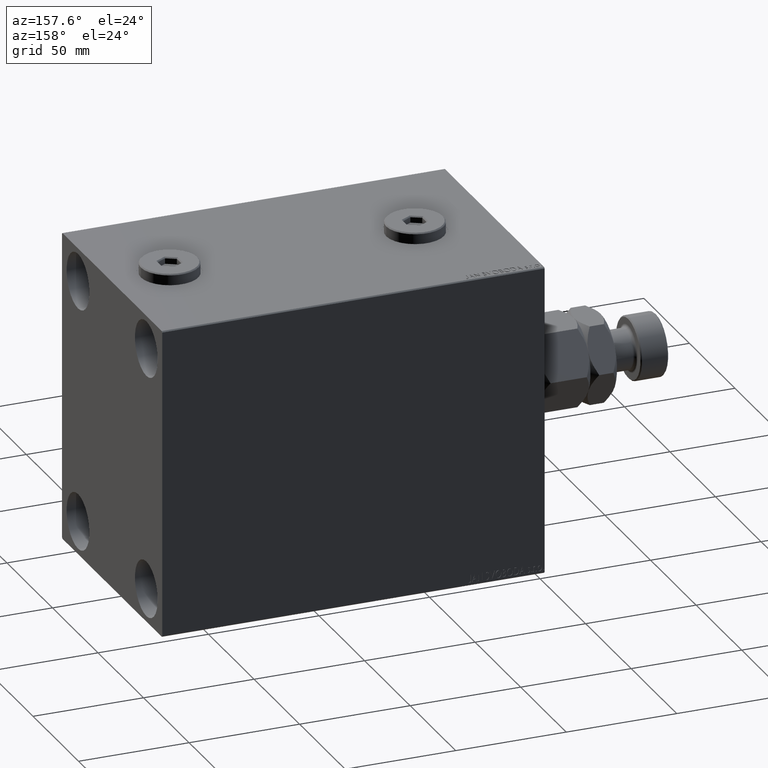
[diagram: clean part render]
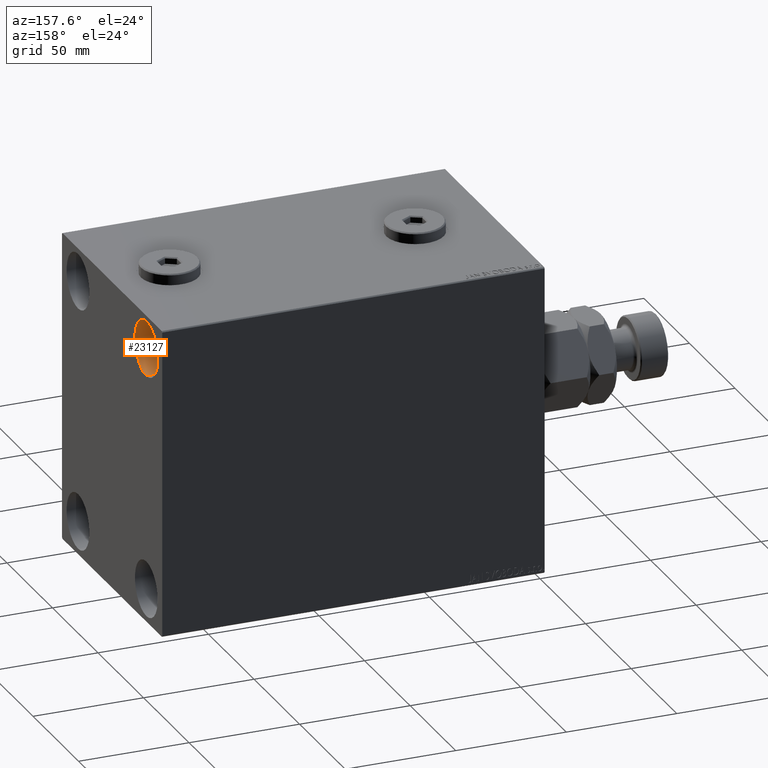
[diagram: same view with one face highlighted and labeled with its STEP entity id]
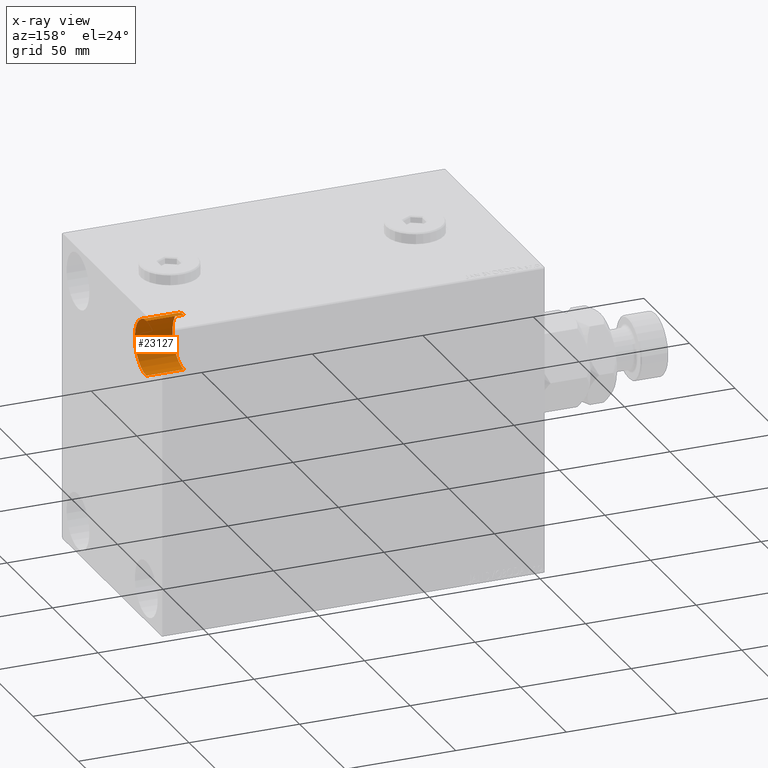
[diagram: x-ray of the same camera — body ghosted, the highlighted face saturated]
A machine part, auxiliary view. The second image highlights one B-rep face of the part: STEP entity #23127.
The next image is the same camera in x-ray: the body ghosted, the highlighted face saturated — about 0% of this face is hidden behind the body in this view.
In plain terms, the highlighted cylindrical surface (edge-blend (fillet) strip) has radius 12.5 mm, axis along (1, 0, 0).
Its self-contained STEP definition (entity closure, byte-faithful):
#829 = CARTESIAN_POINT ( 'NONE',  ( 173.0000000000000000, 37.50000000000000711, 55.00000000000000711 ) ) ;
#1446 = LINE ( 'NONE', #27607, #18927 ) ;
#2832 = CARTESIAN_POINT ( 'NONE',  ( 155.9999999999999716, 37.50000000000000711, 55.00000000000000711 ) ) ;
#3826 = ORIENTED_EDGE ( 'NONE', *, *, #20458, .T. ) ;
#5581 = AXIS2_PLACEMENT_3D ( 'NONE', #829, #7961, #16048 ) ;
#7961 = DIRECTION ( 'NONE',  ( -1.000000000000000000, -0.000000000000000000, -0.000000000000000000 ) ) ;
#8568 = ORIENTED_EDGE ( 'NONE', *, *, #43903, .F. ) ;
#8855 = DIRECTION ( 'NONE',  ( 1.000000000000000000, -0.000000000000000000, -0.000000000000000000 ) ) ;
#9176 = CARTESIAN_POINT ( 'NONE',  ( 173.0000000000000000, 37.50000000000000711, 42.50000000000000711 ) ) ;
#13529 = CARTESIAN_POINT ( 'NONE',  ( 173.0000000000000000, 37.50000000000000711, 67.50000000000000000 ) ) ;
#13726 = AXIS2_PLACEMENT_3D ( 'NONE', #2832, #31629, #14021 ) ;
#14021 = DIRECTION ( 'NONE',  ( 0.000000000000000000, 0.000000000000000000, 1.000000000000000000 ) ) ;
#15978 = AXIS2_PLACEMENT_3D ( 'NONE', #34703, #30905, #34007 ) ;
#16048 = DIRECTION ( 'NONE',  ( 0.000000000000000000, 0.000000000000000000, 1.000000000000000000 ) ) ;
#17766 = CIRCLE ( 'NONE', #5581, 12.49999999999999645 ) ;
#18927 = VECTOR ( 'NONE', #45442, 1000.000000000000000 ) ;
#19583 = VERTEX_POINT ( 'NONE', #25492 ) ;
#20025 = VERTEX_POINT ( 'NONE', #9176 ) ;
#20458 = EDGE_CURVE ( 'NONE', #25720, #32680, #1446, .T. ) ;
#20516 = LINE ( 'NONE', #26911, #26894 ) ;
#23127 = ADVANCED_FACE ( 'NONE', ( #38507 ), #31146, .F. ) ;
#23247 = EDGE_CURVE ( 'NONE', #19583, #25720, #34204, .T. ) ;
#23658 = EDGE_LOOP ( 'NONE', ( #29147, #3826, #26328, #8568 ) ) ;
#25492 = CARTESIAN_POINT ( 'NONE',  ( 155.9999999999999716, 37.50000000000000711, 42.50000000000000711 ) ) ;
#25720 = VERTEX_POINT ( 'NONE', #42317 ) ;
#26328 = ORIENTED_EDGE ( 'NONE', *, *, #42537, .F. ) ;
#26894 = VECTOR ( 'NONE', #8855, 1000.000000000000000 ) ;
#26911 = CARTESIAN_POINT ( 'NONE',  ( 155.9999999999999716, 37.50000000000000711, 42.50000000000000711 ) ) ;
#27607 = CARTESIAN_POINT ( 'NONE',  ( 155.9999999999999716, 37.50000000000000711, 67.50000000000000000 ) ) ;
#29147 = ORIENTED_EDGE ( 'NONE', *, *, #23247, .T. ) ;
#30905 = DIRECTION ( 'NONE',  ( 1.000000000000000000, -0.000000000000000000, -0.000000000000000000 ) ) ;
#31146 = CYLINDRICAL_SURFACE ( 'NONE', #15978, 12.49999999999999645 ) ;
#31629 = DIRECTION ( 'NONE',  ( -1.000000000000000000, -0.000000000000000000, -0.000000000000000000 ) ) ;
#32680 = VERTEX_POINT ( 'NONE', #13529 ) ;
#34007 = DIRECTION ( 'NONE',  ( 0.000000000000000000, 0.000000000000000000, -1.000000000000000000 ) ) ;
#34204 = CIRCLE ( 'NONE', #13726, 12.49999999999999645 ) ;
#34703 = CARTESIAN_POINT ( 'NONE',  ( 155.9999999999999716, 37.50000000000000711, 55.00000000000000711 ) ) ;
#38507 = FACE_OUTER_BOUND ( 'NONE', #23658, .T. ) ;
#42317 = CARTESIAN_POINT ( 'NONE',  ( 155.9999999999999716, 37.50000000000000711, 67.50000000000000000 ) ) ;
#42537 = EDGE_CURVE ( 'NONE', #20025, #32680, #17766, .T. ) ;
#43903 = EDGE_CURVE ( 'NONE', #19583, #20025, #20516, .T. ) ;
#45442 = DIRECTION ( 'NONE',  ( 1.000000000000000000, -0.000000000000000000, -0.000000000000000000 ) ) ;